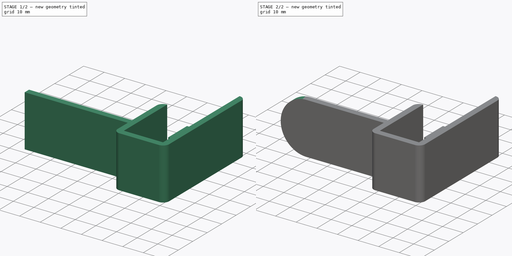
[diagram: build sequence overview — one tinted view per stage of 2, left to right]
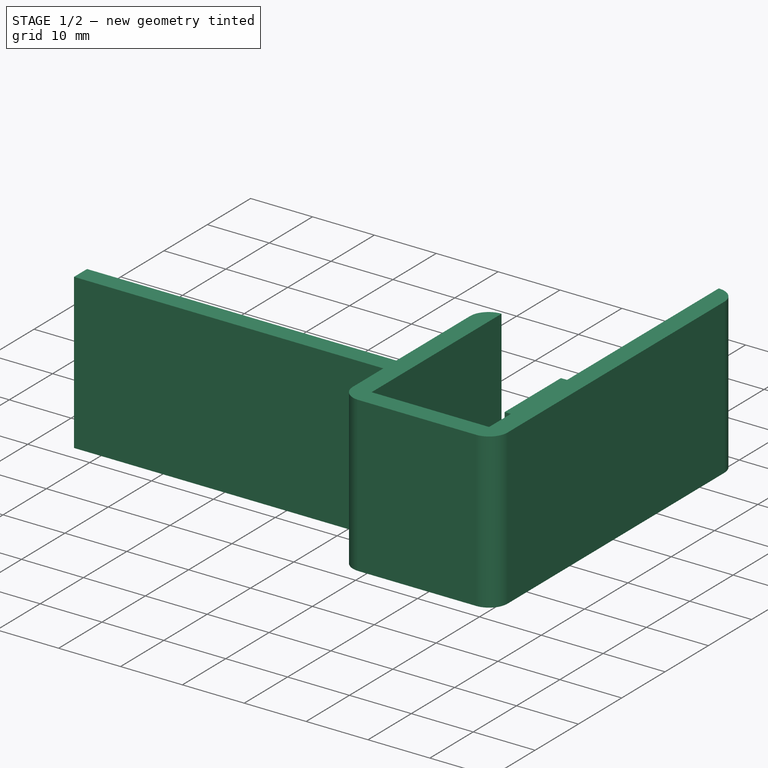
[diagram: stage 1 of 2 — iso view after this stage's code; geometry added in this stage tinted green]
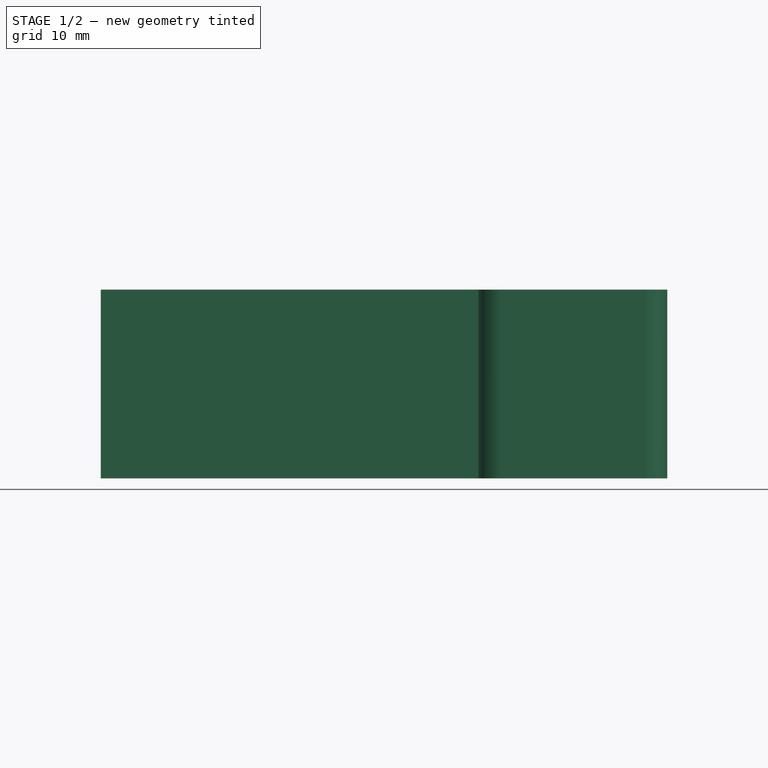
[diagram: stage 1 of 2 — front view after this stage's code; geometry added in this stage tinted green]
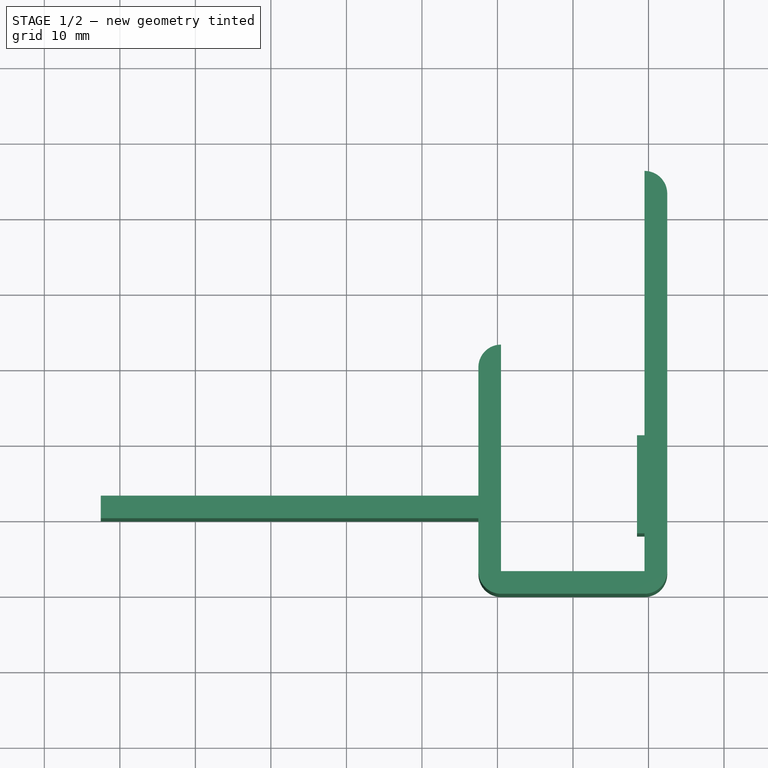
[diagram: stage 1 of 2 — top view after this stage's code; geometry added in this stage tinted green]
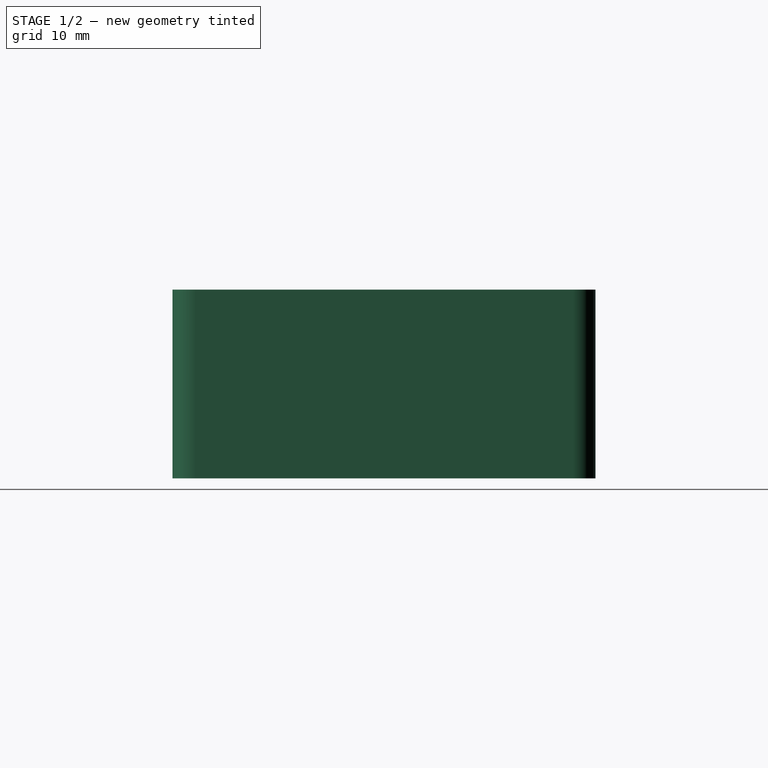
[diagram: stage 1 of 2 — right view after this stage's code; geometry added in this stage tinted green]
FCSTD DOCUMENT  (FreeCAD 0.18R16146 (Git))
Label: cabinet-door-spacer
License: All rights reserved
LicenseURL: http://en.wikipedia.org/wiki/All_rights_reserved
objects: Sketcher::SketchObject×2, PartDesign::Pad×1, PartDesign::Pocket×1, PartDesign::Body×1
note: 7 computed .brp shape members not serialized (recipe doc carries the construction recipe); baked Part::Feature solids carry a one-line shape summary decoded from their .brp

FEATURE [Sketcher::SketchObject] Sketch
  MapMode = 5
  Support = -> [XY_Plane]
  sketch-geometry (19):
    g0: LineSegment StartX=0 StartY=0 StartZ=0 EndX=9.47649 EndY=0 EndZ=0
    g1: LineSegment StartX=12.4765 StartY=3 StartZ=0 EndX=12.4765 EndY=53 EndZ=0
    g2: LineSegment StartX=8.47649 StartY=21 StartZ=0 EndX=8.47649 EndY=8 EndZ=0
    g3: LineSegment StartX=8.47649 StartY=8 StartZ=0 EndX=9.47649 EndY=8 EndZ=0
    g4: LineSegment StartX=9.47649 StartY=8 StartZ=0 EndX=9.47649 EndY=3 EndZ=0
    g5: LineSegment StartX=9.47649 StartY=3 StartZ=0 EndX=-9.52351 EndY=3 EndZ=0
    g6: LineSegment StartX=-9.52351 StartY=3 StartZ=0 EndX=-9.52351 EndY=33 EndZ=0
    g7: LineSegment StartX=-12.5235 StartY=30 StartZ=0 EndX=-12.5235 EndY=13 EndZ=0
    g8: LineSegment StartX=-12.5235 StartY=13 StartZ=0 EndX=-62.5235 EndY=13 EndZ=0
    g9: LineSegment StartX=-62.5235 StartY=10 StartZ=0 EndX=-12.5235 EndY=10 EndZ=0
    g10: LineSegment StartX=-12.5235 StartY=10 StartZ=0 EndX=-12.5235 EndY=3 EndZ=0
    g11: LineSegment StartX=-9.52351 StartY=0 StartZ=0 EndX=0 EndY=0 EndZ=0
    g12: LineSegment StartX=8.47649 StartY=21 StartZ=0 EndX=9.47649 EndY=21 EndZ=0
    g13: LineSegment StartX=9.47649 StartY=21 StartZ=0 EndX=9.47649 EndY=56 EndZ=0
    g14: ArcOfCircle CenterX=9.47649 CenterY=3 CenterZ=0 NormalX=0 NormalY=0 NormalZ=1 AngleXU=0 Radius=3 StartAngle=4.71239 EndAngle=6.28319
    g15: ArcOfCircle CenterX=-9.52351 CenterY=3 CenterZ=0 NormalX=0 NormalY=0 NormalZ=1 AngleXU=0 Radius=3 StartAngle=3.14159 EndAngle=4.71239
    g16: ArcOfCircle CenterX=9.47649 CenterY=53 CenterZ=0 NormalX=0 NormalY=0 NormalZ=1 AngleXU=0 Radius=3 StartAngle=0 EndAngle=1.5708
    g17: ArcOfCircle CenterX=-9.52351 CenterY=30 CenterZ=0 NormalX=0 NormalY=0 NormalZ=1 AngleXU=0 Radius=3 StartAngle=1.5708 EndAngle=3.14159
    g18: LineSegment StartX=-62.5235 StartY=13 StartZ=0 EndX=-62.5235 EndY=10 EndZ=0
  constraints (55):
    c: Coincident(g-1,g0)
    c: Vertical(g1)
    c: Vertical(g2)
    c: Coincident(g2,g3)
    c: Horizontal(g3)
    c: Coincident(g3,g4)
    c: Vertical(g4)
    c: Coincident(g4,g5)
    c: Coincident(g5,g6)
    c: Vertical(g6)
    c: Vertical(g7)
    c: Coincident(g7,g8)
    c: Horizontal(g8)
    c: Horizontal(g9)
    c: Coincident(g9,g10)
    c: Vertical(g10)
    c: Coincident(g11,g0)
    c: Horizontal(g0)
    c: Horizontal(g11)
    c: Coincident(g12,g2)
    c: Horizontal(g12)
    c: Coincident(g13,g12)
    c: Vertical(g13)
    c: DistanceY(g9,g7) = 3
    c: DistanceY(g4,g3) = 5
    c: DistanceX(g2,g3) = 1
    c: DistanceY(g2,g2) = 13
    c: DistanceY(g0,g5) = 3
    c: DistanceX(g5,g4) = 19
    c: Horizontal(g5)
    c: Tangent(g0,g14) = -1.5708
    c: Tangent(g1,g14) = -1.5708
    c: Tangent(g10,g15) = -1.5708
    c: Tangent(g11,g15) = -1.5708
    c: DistanceX(g7,g9) = 0
    c: Coincident(g17,g6)
    c: Coincident(g17,g7)
    c: Perpendicular(g6,g17) = 1.5708
    c: Tangent(g7,g17) = -1.5708
    c: Equal(g17,g15)
    c: DistanceX(g7,g17) = 3
    c: DistanceX(g8,g8) = 50
    c: DistanceX(g8,g9) = 0
    c: Equal(g17,g14)
    c: Coincident(g16,g1)
    c: Coincident(g13,g16)
    c: DistanceX(g13,g1) = 3
    c: Tangent(g1,g16) = -1.5708
    c: Perpendicular(g13,g16) = 1.5708
    c: DistanceY(g11,g9) = 10
    c: DistanceX(g4,g1) = 3
    c: DistanceY(g5,g6) = 30
    c: DistanceY(g4,g16) = 50
    c: Coincident(g18,g8)
    c: Coincident(g18,g9)
FEATURE [PartDesign::Pad] Pad
  Length = 25
  Length2 = 100
  Profile = -> Sketch
  Type = 0
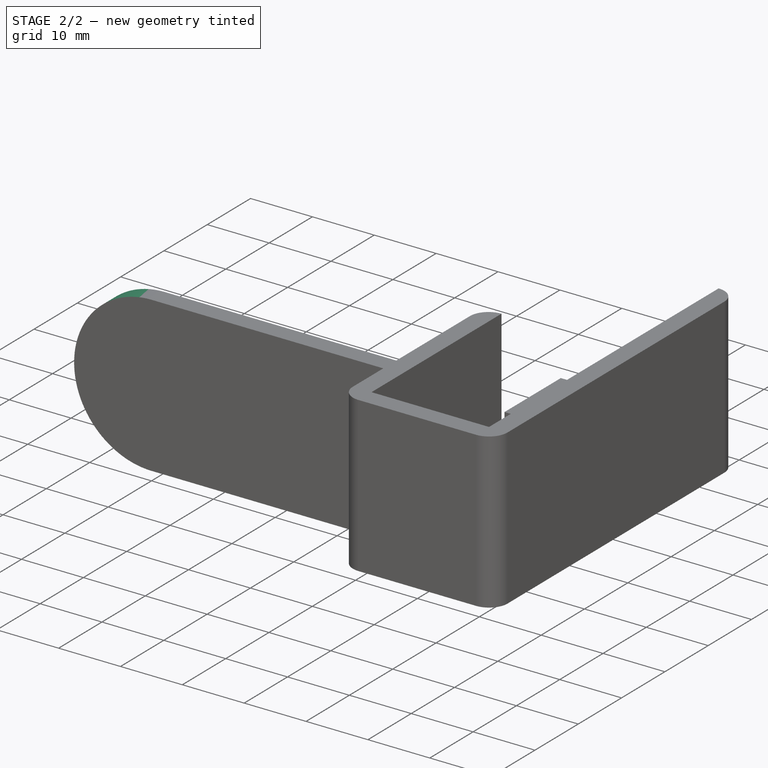
[diagram: stage 2 of 2 — iso view after this stage's code; geometry added in this stage tinted green]
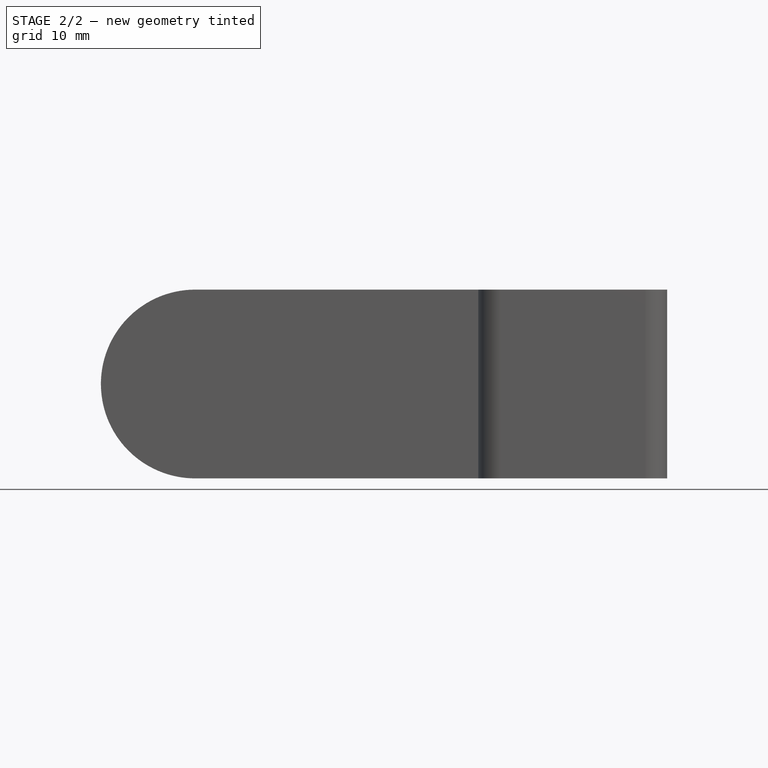
[diagram: stage 2 of 2 — front view after this stage's code; geometry added in this stage tinted green]
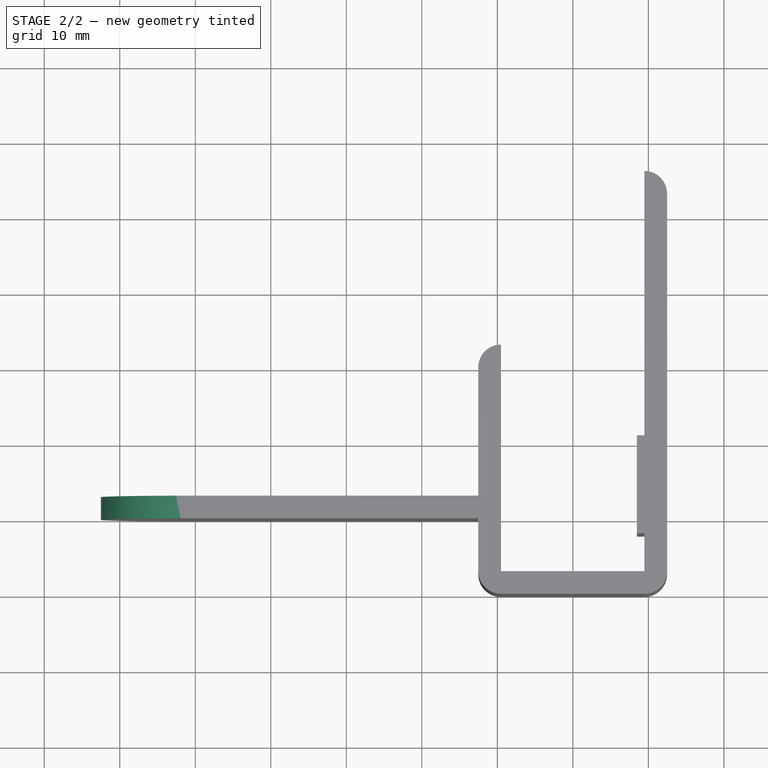
[diagram: stage 2 of 2 — top view after this stage's code; geometry added in this stage tinted green]
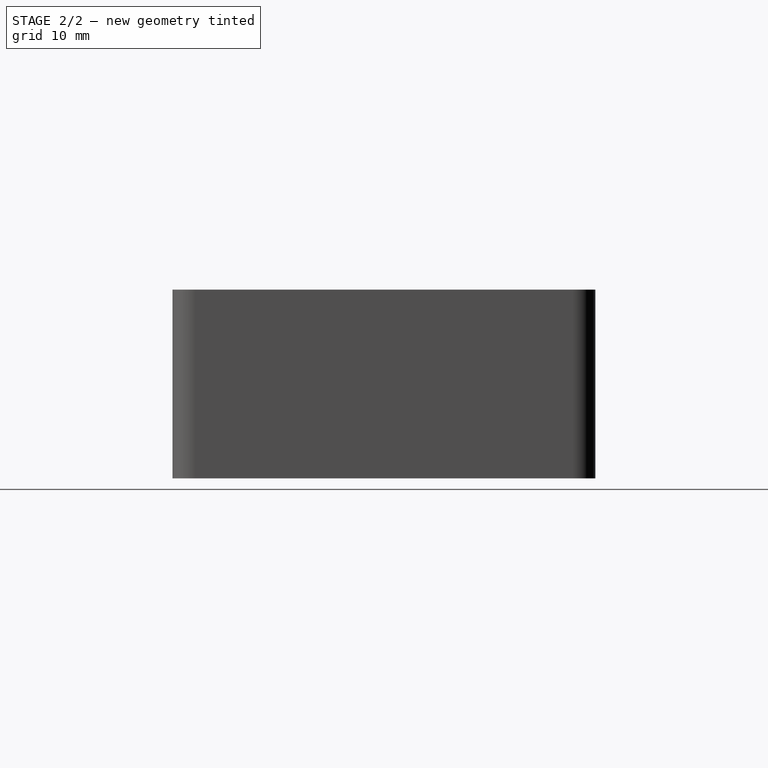
[diagram: stage 2 of 2 — right view after this stage's code; geometry added in this stage tinted green]
FEATURE [Sketcher::SketchObject] Sketch001
  MapMode = 5
  Placement = pos=(0,10,0) rot=(1,0,0;1.5708rad)
  Support = -> [Pad]
  sketch-geometry (8):
    g0: ArcOfCircle CenterX=-50 CenterY=12.5002 CenterZ=0 NormalX=0 NormalY=0 NormalZ=1 AngleXU=0 Radius=12.5002 StartAngle=1.5708 EndAngle=4.71239
    g1: LineSegment StartX=-50 StartY=25.0004 StartZ=0 EndX=-50 EndY=31 EndZ=0
    g2: LineSegment StartX=-50 StartY=31 StartZ=0 EndX=-68 EndY=31 EndZ=0
    g3: LineSegment StartX=-68 StartY=31 StartZ=0 EndX=-68 EndY=-4.56898 EndZ=0
    g4: LineSegment StartX=-68 StartY=-4.56898 StartZ=0 EndX=-50 EndY=-4.56898 EndZ=0
    g5: LineSegment StartX=-50 StartY=-4.56898 StartZ=0 EndX=-50 EndY=0 EndZ=0
    g6: GeomPoint X=-64 Y=12 Z=0
    g7: GeomPoint X=-64 Y=12 Z=0
  constraints (14):
    c: PointOnObject(g0,g-1)
    c: Coincident(g0,g1)
    c: Coincident(g1,g2)
    c: Horizontal(g2)
    c: Coincident(g2,g3)
    c: Vertical(g3)
    c: Coincident(g3,g4)
    c: Horizontal(g4)
    c: Coincident(g4,g5)
    c: Coincident(g5,g0)
    c: Vertical(g5)
    c: Perpendicular(g5,g0,g5) = 4.71239
    c: Vertical(g1)
    c: Perpendicular(g0,g1)
FEATURE [PartDesign::Pocket] Pocket
  BaseFeature = -> Pad
  Length = 5
  Length2 = 100
  Profile = -> Sketch001
  Type = 0
FEATURE [PartDesign::Body] Body
  Group = -> [Sketch,Pad,Sketch001,Pocket]
  Origin = -> Origin
  Tip = -> Pocket
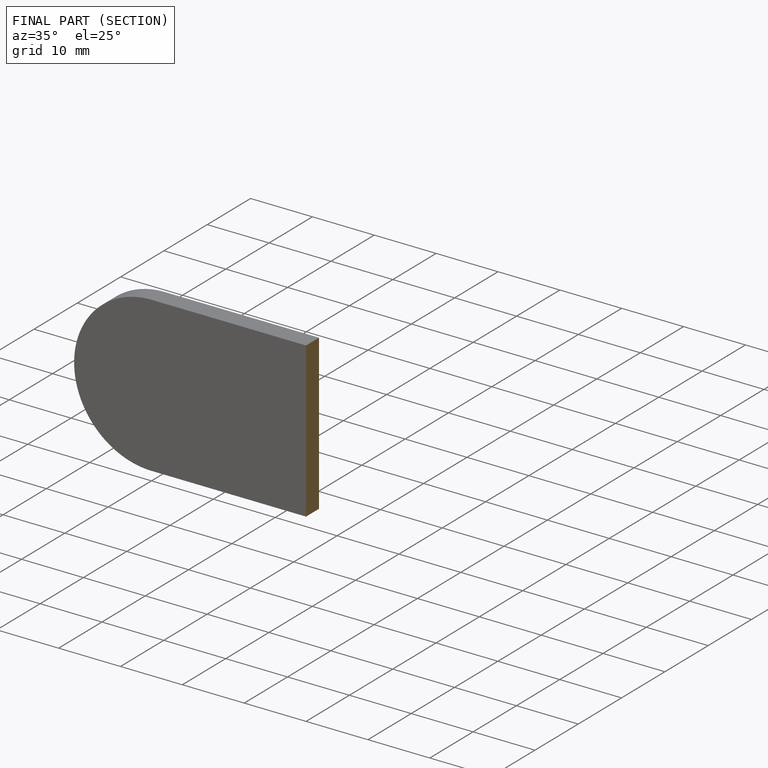
[diagram: finished part — half-section view (interior)]
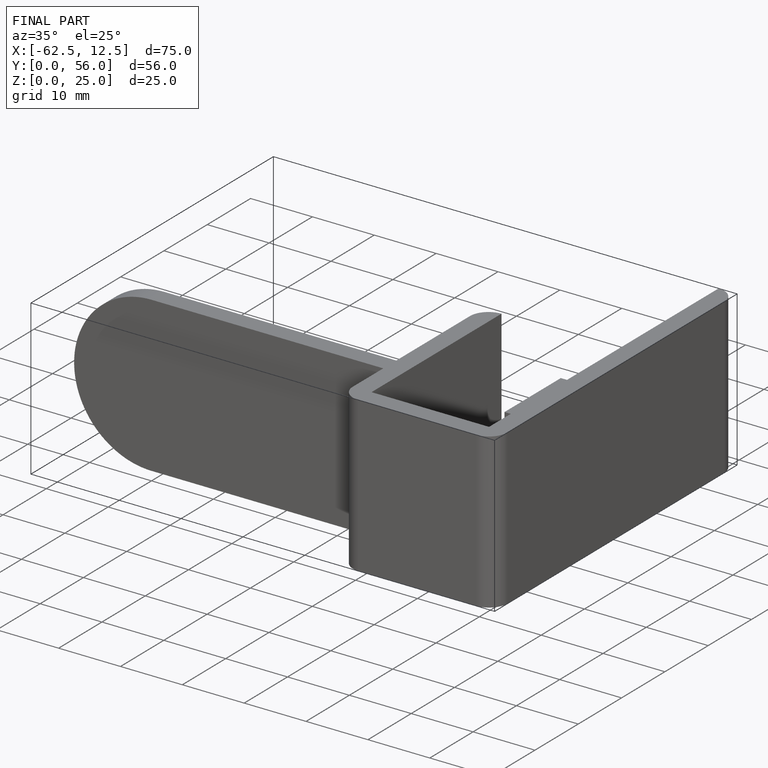
[diagram: finished part — iso view with bounding-box wireframe]
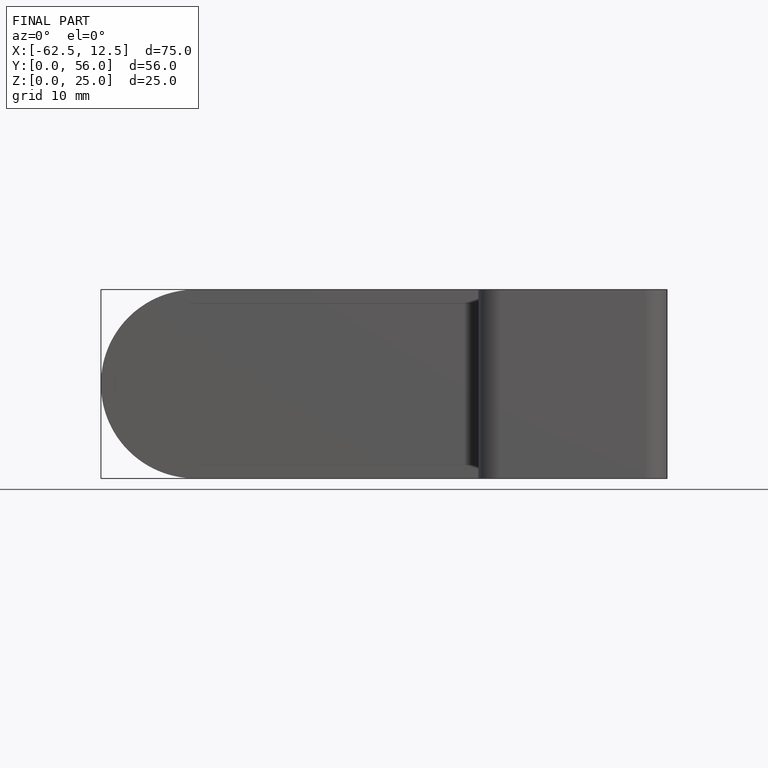
[diagram: finished part — front view with bounding-box wireframe]
